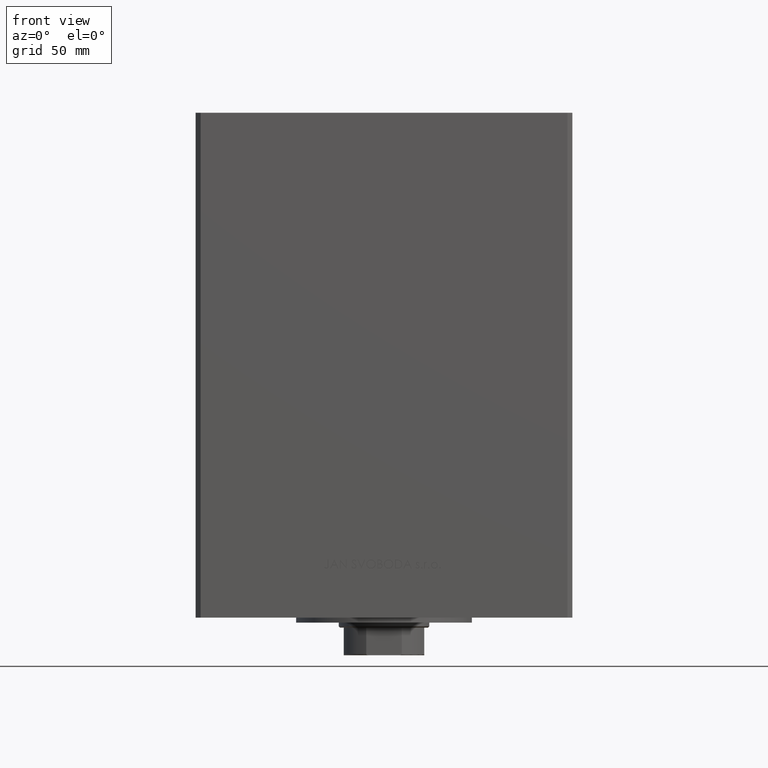
[diagram: clean part render]
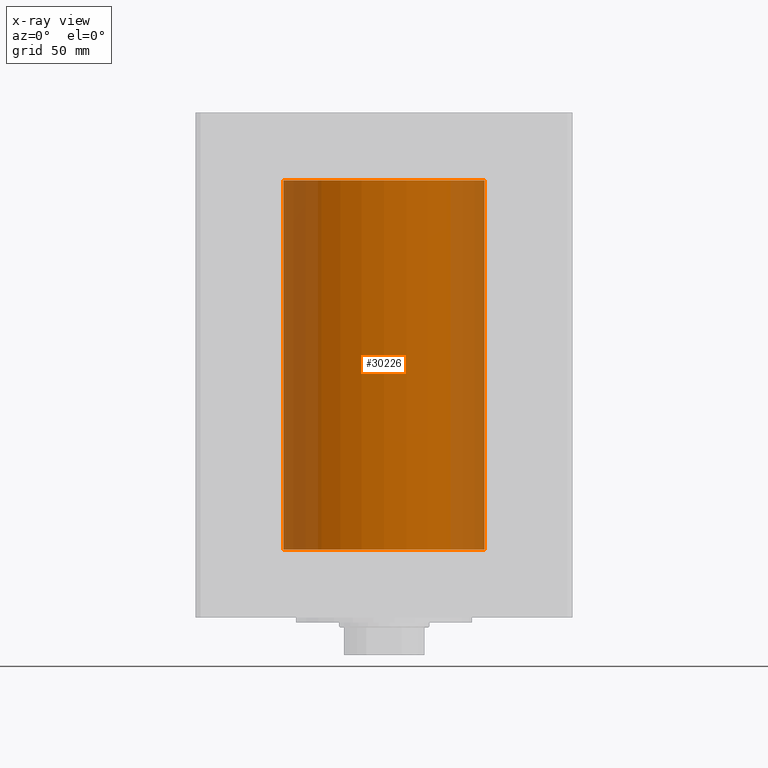
[diagram: x-ray — body ghosted, one internal face saturated and labeled with its STEP entity id]
A machine part, front view, then the same camera in x-ray: the body is ghosted and one INTERNAL B-rep face — a face not visible from any outside direction — is saturated and labeled: STEP entity #30226.
In plain terms, the highlighted cylindrical surface (partial cylindrical patch) has radius 40 mm, axis along (-0, -0, -1).
Its self-contained STEP definition (entity closure, byte-faithful):
#46 = DIRECTION ( 'NONE',  ( 1.000000000000000000, 0.000000000000000000, 0.000000000000000000 ) ) ;
#7055 = VECTOR ( 'NONE', #45071, 1000.000000000000000 ) ;
#9558 = EDGE_LOOP ( 'NONE', ( #13162, #17120, #30754, #10060 ) ) ;
#10060 = ORIENTED_EDGE ( 'NONE', *, *, #17466, .F. ) ;
#10544 = AXIS2_PLACEMENT_3D ( 'NONE', #27234, #16113, #19084 ) ;
#11202 = CARTESIAN_POINT ( 'NONE',  ( -40.00000000000000000, 0.000000000000000000, 0.000000000000000000 ) ) ;
#11442 = FACE_OUTER_BOUND ( 'NONE', #9558, .T. ) ;
#11632 = EDGE_CURVE ( 'NONE', #34449, #22817, #14832, .T. ) ;
#11767 = VECTOR ( 'NONE', #14583, 1000.000000000000000 ) ;
#12053 = CARTESIAN_POINT ( 'NONE',  ( 40.00000000000000000, 4.898587196589413026E-15, 147.0000000000000000 ) ) ;
#13162 = ORIENTED_EDGE ( 'NONE', *, *, #13321, .T. ) ;
#13321 = EDGE_CURVE ( 'NONE', #22484, #34449, #24456, .T. ) ;
#14583 = DIRECTION ( 'NONE',  ( -0.000000000000000000, -0.000000000000000000, -1.000000000000000000 ) ) ;
#14832 = LINE ( 'NONE', #26198, #11767 ) ;
#15384 = CARTESIAN_POINT ( 'NONE',  ( -40.00000000000000000, 0.000000000000000000, 147.0000000000000000 ) ) ;
#16113 = DIRECTION ( 'NONE',  ( -0.000000000000000000, -0.000000000000000000, -1.000000000000000000 ) ) ;
#17120 = ORIENTED_EDGE ( 'NONE', *, *, #11632, .T. ) ;
#17466 = EDGE_CURVE ( 'NONE', #22484, #32916, #37892, .T. ) ;
#19084 = DIRECTION ( 'NONE',  ( -1.000000000000000000, 0.000000000000000000, 0.000000000000000000 ) ) ;
#20036 = CARTESIAN_POINT ( 'NONE',  ( 0.000000000000000000, 0.000000000000000000, 147.0000000000000000 ) ) ;
#20782 = CIRCLE ( 'NONE', #34223, 40.00000000000000000 ) ;
#22009 = CARTESIAN_POINT ( 'NONE',  ( 0.000000000000000000, 0.000000000000000000, 0.000000000000000000 ) ) ;
#22484 = VERTEX_POINT ( 'NONE', #29858 ) ;
#22817 = VERTEX_POINT ( 'NONE', #31938 ) ;
#24456 = CIRCLE ( 'NONE', #28389, 40.00000000000000000 ) ;
#26198 = CARTESIAN_POINT ( 'NONE',  ( 40.00000000000000000, 4.898587196589413026E-15, 147.0000000000000000 ) ) ;
#27234 = CARTESIAN_POINT ( 'NONE',  ( 0.000000000000000000, 0.000000000000000000, 147.0000000000000000 ) ) ;
#28389 = AXIS2_PLACEMENT_3D ( 'NONE', #20036, #38142, #46 ) ;
#29858 = CARTESIAN_POINT ( 'NONE',  ( -40.00000000000000000, 0.000000000000000000, 147.0000000000000000 ) ) ;
#30226 = ADVANCED_FACE ( 'NONE', ( #11442 ), #35160, .F. ) ;
#30284 = EDGE_CURVE ( 'NONE', #32916, #22817, #20782, .T. ) ;
#30754 = ORIENTED_EDGE ( 'NONE', *, *, #30284, .F. ) ;
#31938 = CARTESIAN_POINT ( 'NONE',  ( 40.00000000000000000, 4.898587196589413026E-15, 0.000000000000000000 ) ) ;
#32916 = VERTEX_POINT ( 'NONE', #11202 ) ;
#34223 = AXIS2_PLACEMENT_3D ( 'NONE', #22009, #37363, #48019 ) ;
#34449 = VERTEX_POINT ( 'NONE', #12053 ) ;
#35160 = CYLINDRICAL_SURFACE ( 'NONE', #10544, 40.00000000000000000 ) ;
#37363 = DIRECTION ( 'NONE',  ( -0.000000000000000000, 0.000000000000000000, 1.000000000000000000 ) ) ;
#37892 = LINE ( 'NONE', #15384, #7055 ) ;
#38142 = DIRECTION ( 'NONE',  ( -0.000000000000000000, 0.000000000000000000, 1.000000000000000000 ) ) ;
#45071 = DIRECTION ( 'NONE',  ( -0.000000000000000000, -0.000000000000000000, -1.000000000000000000 ) ) ;
#48019 = DIRECTION ( 'NONE',  ( 1.000000000000000000, 0.000000000000000000, 0.000000000000000000 ) ) ;